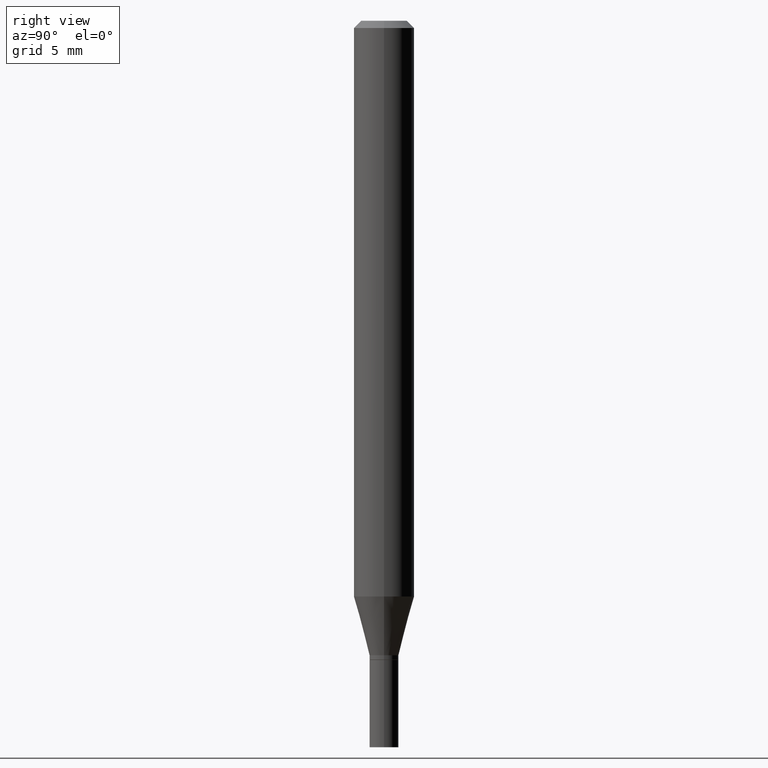
[diagram: clean part render]
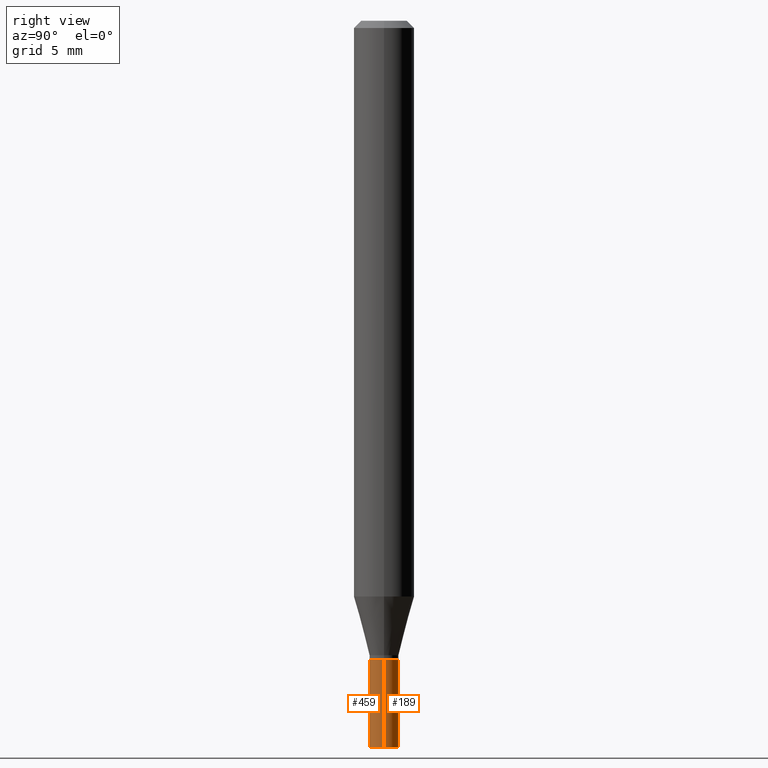
[diagram: same view with one multi-face feature highlighted, each face labeled with its STEP entity id]
A machine part, right view. The highlighted faces form ONE feature: a constant-radius fillet chain: 2 tangent blend faces with common blend radius 0.762 mm. The faces share edges in the B-rep.
Their STEP definitions:
[1] entity #189 (Cylinder):
#2 = CARTESIAN_POINT ( 'NONE',  ( 3.668203209277704895E-29, -5.237222008264718177E-15, -1.500000000000000222 ) ) ;
#8 = VERTEX_POINT ( 'NONE', #402 ) ;
#13 = CYLINDRICAL_SURFACE ( 'NONE', #420, 0.02999999999999999889 ) ;
#22 = CARTESIAN_POINT ( 'NONE',  ( 0.02999999999999999889, -5.446710888595306494E-15, -1.500000000000000222 ) ) ;
#50 = EDGE_CURVE ( 'NONE', #299, #153, #341, .T. ) ;
#71 = VECTOR ( 'NONE', #190, 39.37007874015748143 ) ;
#82 = DIRECTION ( 'NONE',  ( -2.445468806185136877E-29, 3.491481338843145188E-15, 1.000000000000000000 ) ) ;
#83 = ORIENTED_EDGE ( 'NONE', *, *, #50, .T. ) ;
#98 = DIRECTION ( 'NONE',  ( 1.000000000000000000, -6.982962677686268288E-15, 0.000000000000000000 ) ) ;
#100 = EDGE_CURVE ( 'NONE', #8, #153, #359, .T. ) ;
#102 = VERTEX_POINT ( 'NONE', #22 ) ;
#111 = EDGE_LOOP ( 'NONE', ( #121, #83, #393, #410 ) ) ;
#121 = ORIENTED_EDGE ( 'NONE', *, *, #284, .T. ) ;
#125 = FACE_OUTER_BOUND ( 'NONE', #111, .T. ) ;
#153 = VERTEX_POINT ( 'NONE', #443 ) ;
#161 = AXIS2_PLACEMENT_3D ( 'NONE', #343, #277, #267 ) ;
#174 = EDGE_CURVE ( 'NONE', #102, #8, #451, .T. ) ;
#189 = ADVANCED_FACE ( 'NONE', ( #125 ), #13, .T. ) ;
#190 = DIRECTION ( 'NONE',  ( -2.445468806185136877E-29, 3.491481338843145188E-15, 1.000000000000000000 ) ) ;
#223 = DIRECTION ( 'NONE',  ( -2.445468806185136597E-29, 3.491481338843145583E-15, 1.000000000000000000 ) ) ;
#235 = DIRECTION ( 'NONE',  ( 1.000000000000000000, -6.982962677686267499E-15, 4.876176775795936353E-29 ) ) ;
#267 = DIRECTION ( 'NONE',  ( 1.000000000000000000, -6.982962677686268288E-15, 0.000000000000000000 ) ) ;
#277 = DIRECTION ( 'NONE',  ( -2.445468806185136597E-29, 3.491481338843145583E-15, 1.000000000000000000 ) ) ;
#282 = VECTOR ( 'NONE', #82, 39.37007874015748143 ) ;
#284 = EDGE_CURVE ( 'NONE', #102, #299, #455, .T. ) ;
#299 = VERTEX_POINT ( 'NONE', #324 ) ;
#324 = CARTESIAN_POINT ( 'NONE',  ( -0.02999999999999999889, -4.709825867040805456E-15, -1.500000000000000222 ) ) ;
#341 = LINE ( 'NONE', #412, #282 ) ;
#343 = CARTESIAN_POINT ( 'NONE',  ( 3.228018824164380442E-29, -4.608755367272952437E-15, -1.320000000000000062 ) ) ;
#359 = CIRCLE ( 'NONE', #161, 0.02999999999999999889 ) ;
#393 = ORIENTED_EDGE ( 'NONE', *, *, #100, .F. ) ;
#402 = CARTESIAN_POINT ( 'NONE',  ( 0.02999999999999999889, -4.818244247603540754E-15, -1.320000000000000062 ) ) ;
#407 = DIRECTION ( 'NONE',  ( -2.445468806185136597E-29, 3.491481338843145583E-15, 1.000000000000000000 ) ) ;
#410 = ORIENTED_EDGE ( 'NONE', *, *, #174, .F. ) ;
#412 = CARTESIAN_POINT ( 'NONE',  ( -0.02999999999999999889, 2.131628207280300479E-16, -1.475680527076471707E-30 ) ) ;
#420 = AXIS2_PLACEMENT_3D ( 'NONE', #440, #407, #235 ) ;
#424 = AXIS2_PLACEMENT_3D ( 'NONE', #2, #223, #98 ) ;
#440 = CARTESIAN_POINT ( 'NONE',  ( 0.000000000000000000, 0.000000000000000000, 0.000000000000000000 ) ) ;
#443 = CARTESIAN_POINT ( 'NONE',  ( -0.02999999999999999889, -4.709825867040805456E-15, -1.320000000000000062 ) ) ;
#449 = CARTESIAN_POINT ( 'NONE',  ( 0.02999999999999999889, -2.094888803305880210E-16, 1.462853032738780878E-30 ) ) ;
#451 = LINE ( 'NONE', #449, #71 ) ;
#455 = CIRCLE ( 'NONE', #424, 0.02999999999999999889 ) ;
[2] entity #459 (Cylinder):
#8 = VERTEX_POINT ( 'NONE', #402 ) ;
#14 = ORIENTED_EDGE ( 'NONE', *, *, #147, .F. ) ;
#22 = CARTESIAN_POINT ( 'NONE',  ( 0.02999999999999999889, -5.446710888595306494E-15, -1.500000000000000222 ) ) ;
#32 = CARTESIAN_POINT ( 'NONE',  ( 0.000000000000000000, 0.000000000000000000, 0.000000000000000000 ) ) ;
#50 = EDGE_CURVE ( 'NONE', #299, #153, #341, .T. ) ;
#64 = AXIS2_PLACEMENT_3D ( 'NONE', #229, #422, #159 ) ;
#71 = VECTOR ( 'NONE', #190, 39.37007874015748143 ) ;
#74 = CYLINDRICAL_SURFACE ( 'NONE', #201, 0.02999999999999999889 ) ;
#82 = DIRECTION ( 'NONE',  ( -2.445468806185136877E-29, 3.491481338843145188E-15, 1.000000000000000000 ) ) ;
#91 = CARTESIAN_POINT ( 'NONE',  ( 3.668203209277704895E-29, -5.237222008264718177E-15, -1.500000000000000222 ) ) ;
#93 = EDGE_LOOP ( 'NONE', ( #243, #167, #377, #14 ) ) ;
#102 = VERTEX_POINT ( 'NONE', #22 ) ;
#147 = EDGE_CURVE ( 'NONE', #153, #8, #353, .T. ) ;
#153 = VERTEX_POINT ( 'NONE', #443 ) ;
#159 = DIRECTION ( 'NONE',  ( 1.000000000000000000, -6.982962677686268288E-15, 0.000000000000000000 ) ) ;
#167 = ORIENTED_EDGE ( 'NONE', *, *, #430, .T. ) ;
#174 = EDGE_CURVE ( 'NONE', #102, #8, #451, .T. ) ;
#190 = DIRECTION ( 'NONE',  ( -2.445468806185136877E-29, 3.491481338843145188E-15, 1.000000000000000000 ) ) ;
#201 = AXIS2_PLACEMENT_3D ( 'NONE', #32, #222, #297 ) ;
#222 = DIRECTION ( 'NONE',  ( -2.445468806185136597E-29, 3.491481338843145583E-15, 1.000000000000000000 ) ) ;
#229 = CARTESIAN_POINT ( 'NONE',  ( 3.228018824164380442E-29, -4.608755367272952437E-15, -1.320000000000000062 ) ) ;
#243 = ORIENTED_EDGE ( 'NONE', *, *, #50, .F. ) ;
#257 = FACE_OUTER_BOUND ( 'NONE', #93, .T. ) ;
#282 = VECTOR ( 'NONE', #82, 39.37007874015748143 ) ;
#291 = DIRECTION ( 'NONE',  ( 1.000000000000000000, -6.982962677686268288E-15, 0.000000000000000000 ) ) ;
#297 = DIRECTION ( 'NONE',  ( 1.000000000000000000, -6.982962677686267499E-15, 4.876176775795936353E-29 ) ) ;
#299 = VERTEX_POINT ( 'NONE', #324 ) ;
#324 = CARTESIAN_POINT ( 'NONE',  ( -0.02999999999999999889, -4.709825867040805456E-15, -1.500000000000000222 ) ) ;
#341 = LINE ( 'NONE', #412, #282 ) ;
#347 = CIRCLE ( 'NONE', #434, 0.02999999999999999889 ) ;
#353 = CIRCLE ( 'NONE', #64, 0.02999999999999999889 ) ;
#377 = ORIENTED_EDGE ( 'NONE', *, *, #174, .T. ) ;
#389 = DIRECTION ( 'NONE',  ( -2.445468806185136597E-29, 3.491481338843145583E-15, 1.000000000000000000 ) ) ;
#402 = CARTESIAN_POINT ( 'NONE',  ( 0.02999999999999999889, -4.818244247603540754E-15, -1.320000000000000062 ) ) ;
#412 = CARTESIAN_POINT ( 'NONE',  ( -0.02999999999999999889, 2.131628207280300479E-16, -1.475680527076471707E-30 ) ) ;
#422 = DIRECTION ( 'NONE',  ( -2.445468806185136597E-29, 3.491481338843145583E-15, 1.000000000000000000 ) ) ;
#430 = EDGE_CURVE ( 'NONE', #299, #102, #347, .T. ) ;
#434 = AXIS2_PLACEMENT_3D ( 'NONE', #91, #389, #291 ) ;
#443 = CARTESIAN_POINT ( 'NONE',  ( -0.02999999999999999889, -4.709825867040805456E-15, -1.320000000000000062 ) ) ;
#449 = CARTESIAN_POINT ( 'NONE',  ( 0.02999999999999999889, -2.094888803305880210E-16, 1.462853032738780878E-30 ) ) ;
#451 = LINE ( 'NONE', #449, #71 ) ;
#459 = ADVANCED_FACE ( 'NONE', ( #257 ), #74, .T. ) ;